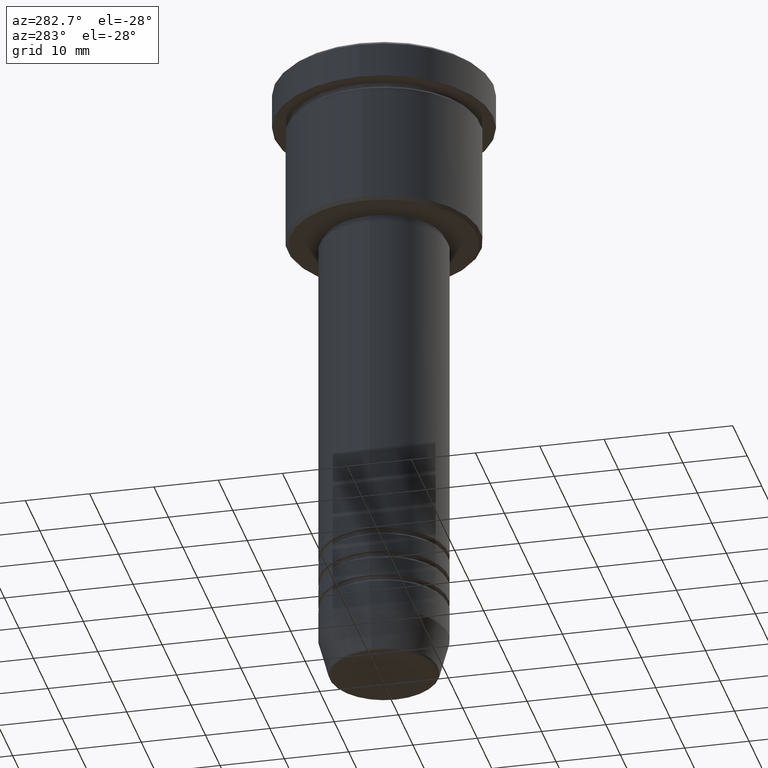
[diagram: clean part render]
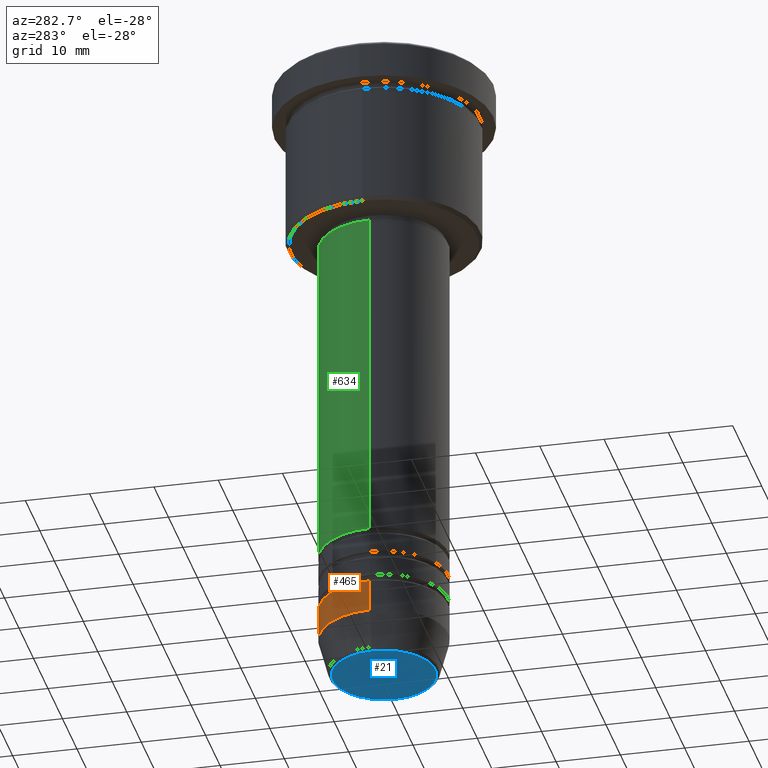
[diagram: same view with three faces highlighted in distinct colors, each labeled with its STEP entity id]
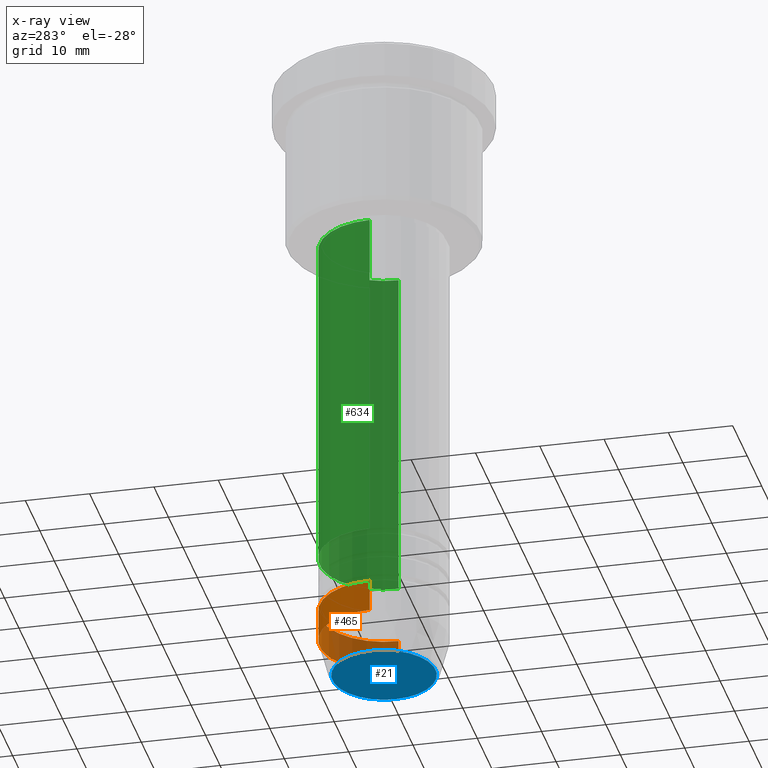
[diagram: x-ray of the same camera — body ghosted, the three highlighted faces saturated]
A machine part, auxiliary view with three faces highlighted in distinct colors.
The next image is the same camera in x-ray (body ghosted, the three faces saturated) — at least one of them is partly hidden behind the body in this view.
Their STEP definitions:

[orange] entity #465 — the highlighted cylindrical surface (partial cylindrical patch) has radius 10 mm, axis along (-0, -0, 1).
#8 = ORIENTED_EDGE ( 'NONE', *, *, #136, .F. ) ;
#19 = VECTOR ( 'NONE', #436, 1000.000000000000000 ) ;
#54 = EDGE_CURVE ( 'NONE', #282, #299, #1070, .T. ) ;
#110 = CARTESIAN_POINT ( 'NONE',  ( 0.000000000000000000, 0.000000000000000000, -94.00000000000000000 ) ) ;
#136 = EDGE_CURVE ( 'NONE', #299, #325, #185, .T. ) ;
#149 = EDGE_CURVE ( 'NONE', #282, #320, #165, .T. ) ;
#162 = CARTESIAN_POINT ( 'NONE',  ( 0.000000000000000000, 0.000000000000000000, 0.000000000000000000 ) ) ;
#165 = CIRCLE ( 'NONE', #1124, 10.00000000000000178 ) ;
#185 = CIRCLE ( 'NONE', #678, 10.00000000000000000 ) ;
#203 = DIRECTION ( 'NONE',  ( -0.000000000000000000, -0.000000000000000000, 1.000000000000000000 ) ) ;
#213 = ORIENTED_EDGE ( 'NONE', *, *, #149, .T. ) ;
#275 = CARTESIAN_POINT ( 'NONE',  ( 0.000000000000000000, 0.000000000000000000, -89.00000000000000000 ) ) ;
#282 = VERTEX_POINT ( 'NONE', #963 ) ;
#285 = EDGE_LOOP ( 'NONE', ( #213, #947, #8, #844 ) ) ;
#299 = VERTEX_POINT ( 'NONE', #393 ) ;
#320 = VERTEX_POINT ( 'NONE', #1055 ) ;
#325 = VERTEX_POINT ( 'NONE', #1050 ) ;
#332 = CARTESIAN_POINT ( 'NONE',  ( 10.00000000000000178, 0.000000000000000000, 0.000000000000000000 ) ) ;
#377 = DIRECTION ( 'NONE',  ( 1.000000000000000000, 0.000000000000000000, 0.000000000000000000 ) ) ;
#393 = CARTESIAN_POINT ( 'NONE',  ( 10.00000000000000000, 0.000000000000000000, -89.00000000000000000 ) ) ;
#412 = EDGE_CURVE ( 'NONE', #320, #325, #1173, .T. ) ;
#436 = DIRECTION ( 'NONE',  ( -0.000000000000000000, -0.000000000000000000, 1.000000000000000000 ) ) ;
#465 = ADVANCED_FACE ( 'NONE', ( #1064 ), #969, .T. ) ;
#513 = DIRECTION ( 'NONE',  ( -0.000000000000000000, -0.000000000000000000, 1.000000000000000000 ) ) ;
#537 = CARTESIAN_POINT ( 'NONE',  ( -10.00000000000000178, 1.224646799147353454E-15, 0.000000000000000000 ) ) ;
#560 = AXIS2_PLACEMENT_3D ( 'NONE', #162, #513, #883 ) ;
#568 = DIRECTION ( 'NONE',  ( -0.000000000000000000, -0.000000000000000000, 1.000000000000000000 ) ) ;
#604 = DIRECTION ( 'NONE',  ( -0.000000000000000000, -0.000000000000000000, 1.000000000000000000 ) ) ;
#678 = AXIS2_PLACEMENT_3D ( 'NONE', #275, #203, #377 ) ;
#744 = DIRECTION ( 'NONE',  ( 1.000000000000000000, 0.000000000000000000, 0.000000000000000000 ) ) ;
#844 = ORIENTED_EDGE ( 'NONE', *, *, #54, .F. ) ;
#883 = DIRECTION ( 'NONE',  ( 1.000000000000000000, 0.000000000000000000, 0.000000000000000000 ) ) ;
#947 = ORIENTED_EDGE ( 'NONE', *, *, #412, .T. ) ;
#963 = CARTESIAN_POINT ( 'NONE',  ( 10.00000000000000178, 0.000000000000000000, -94.00000000000000000 ) ) ;
#969 = CYLINDRICAL_SURFACE ( 'NONE', #560, 10.00000000000000178 ) ;
#1050 = CARTESIAN_POINT ( 'NONE',  ( -10.00000000000000000, 1.224646799147353256E-15, -89.00000000000000000 ) ) ;
#1055 = CARTESIAN_POINT ( 'NONE',  ( -10.00000000000000178, 1.224646799147353454E-15, -94.00000000000000000 ) ) ;
#1059 = VECTOR ( 'NONE', #604, 1000.000000000000000 ) ;
#1064 = FACE_OUTER_BOUND ( 'NONE', #285, .T. ) ;
#1070 = LINE ( 'NONE', #332, #19 ) ;
#1124 = AXIS2_PLACEMENT_3D ( 'NONE', #110, #568, #744 ) ;
#1173 = LINE ( 'NONE', #537, #1059 ) ;

[blue] entity #21 — the highlighted planar face has unit normal (0, -0, 1).
#2 = CARTESIAN_POINT ( 'NONE',  ( -8.008641351423779753, 1.010348648938493172E-15, -100.0000000000000000 ) ) ;
#11 = AXIS2_PLACEMENT_3D ( 'NONE', #902, #431, #352 ) ;
#21 = ADVANCED_FACE ( 'NONE', ( #78 ), #974, .F. ) ;
#63 = DIRECTION ( 'NONE',  ( 1.000000000000000000, 0.000000000000000000, 0.000000000000000000 ) ) ;
#78 = FACE_OUTER_BOUND ( 'NONE', #637, .T. ) ;
#133 = VERTEX_POINT ( 'NONE', #835 ) ;
#159 = CARTESIAN_POINT ( 'NONE',  ( 0.000000000000000000, 0.000000000000000000, -100.0000000000000000 ) ) ;
#228 = ORIENTED_EDGE ( 'NONE', *, *, #898, .T. ) ;
#352 = DIRECTION ( 'NONE',  ( 1.000000000000000000, 0.000000000000000000, 0.000000000000000000 ) ) ;
#382 = ORIENTED_EDGE ( 'NONE', *, *, #427, .T. ) ;
#427 = EDGE_CURVE ( 'NONE', #133, #1071, #829, .T. ) ;
#431 = DIRECTION ( 'NONE',  ( 0.000000000000000000, 0.000000000000000000, -1.000000000000000000 ) ) ;
#534 = DIRECTION ( 'NONE',  ( 1.000000000000000000, 0.000000000000000000, 0.000000000000000000 ) ) ;
#562 = CIRCLE ( 'NONE', #830, 8.008641351423779753 ) ;
#637 = EDGE_LOOP ( 'NONE', ( #382, #228 ) ) ;
#714 = DIRECTION ( 'NONE',  ( 0.000000000000000000, 0.000000000000000000, -1.000000000000000000 ) ) ;
#717 = CARTESIAN_POINT ( 'NONE',  ( 0.000000000000000000, 0.000000000000000000, -100.0000000000000000 ) ) ;
#829 = CIRCLE ( 'NONE', #11, 8.008641351423779753 ) ;
#830 = AXIS2_PLACEMENT_3D ( 'NONE', #159, #714, #63 ) ;
#835 = CARTESIAN_POINT ( 'NONE',  ( 8.008641351423779753, 0.000000000000000000, -100.0000000000000000 ) ) ;
#898 = EDGE_CURVE ( 'NONE', #1071, #133, #562, .T. ) ;
#902 = CARTESIAN_POINT ( 'NONE',  ( 0.000000000000000000, 0.000000000000000000, -100.0000000000000000 ) ) ;
#974 = PLANE ( 'NONE',  #1027 ) ;
#990 = DIRECTION ( 'NONE',  ( 0.000000000000000000, -0.000000000000000000, 1.000000000000000000 ) ) ;
#1027 = AXIS2_PLACEMENT_3D ( 'NONE', #717, #990, #534 ) ;
#1071 = VERTEX_POINT ( 'NONE', #2 ) ;

[green] entity #634 — the highlighted cylindrical surface (partial cylindrical patch) has radius 10 mm, axis along (-0, -0, 1).
#57 = ORIENTED_EDGE ( 'NONE', *, *, #191, .F. ) ;
#86 = DIRECTION ( 'NONE',  ( -0.000000000000000000, -0.000000000000000000, 1.000000000000000000 ) ) ;
#88 = EDGE_CURVE ( 'NONE', #1057, #89, #885, .T. ) ;
#89 = VERTEX_POINT ( 'NONE', #445 ) ;
#92 = DIRECTION ( 'NONE',  ( -0.000000000000000000, -0.000000000000000000, 1.000000000000000000 ) ) ;
#173 = DIRECTION ( 'NONE',  ( 1.000000000000000000, 0.000000000000000000, 0.000000000000000000 ) ) ;
#191 = EDGE_CURVE ( 'NONE', #858, #653, #365, .T. ) ;
#365 = LINE ( 'NONE', #728, #967 ) ;
#386 = AXIS2_PLACEMENT_3D ( 'NONE', #455, #92, #450 ) ;
#426 = CARTESIAN_POINT ( 'NONE',  ( -10.00000000000000000, 1.224646799147353256E-15, 0.000000000000000000 ) ) ;
#445 = CARTESIAN_POINT ( 'NONE',  ( -9.999999999999998224, 1.224646799147353256E-15, -26.99999999999999645 ) ) ;
#447 = ORIENTED_EDGE ( 'NONE', *, *, #1146, .F. ) ;
#450 = DIRECTION ( 'NONE',  ( 1.000000000000000000, 0.000000000000000000, 0.000000000000000000 ) ) ;
#455 = CARTESIAN_POINT ( 'NONE',  ( 0.000000000000000000, 0.000000000000000000, 0.000000000000000000 ) ) ;
#545 = CYLINDRICAL_SURFACE ( 'NONE', #386, 10.00000000000000000 ) ;
#549 = CARTESIAN_POINT ( 'NONE',  ( 0.000000000000000000, 0.000000000000000000, -79.99999999999998579 ) ) ;
#611 = ORIENTED_EDGE ( 'NONE', *, *, #88, .T. ) ;
#634 = ADVANCED_FACE ( 'NONE', ( #642 ), #545, .T. ) ;
#640 = CARTESIAN_POINT ( 'NONE',  ( 0.000000000000000000, 0.000000000000000000, -26.99999999999999645 ) ) ;
#642 = FACE_OUTER_BOUND ( 'NONE', #688, .T. ) ;
#650 = ORIENTED_EDGE ( 'NONE', *, *, #972, .T. ) ;
#653 = VERTEX_POINT ( 'NONE', #768 ) ;
#664 = CARTESIAN_POINT ( 'NONE',  ( -10.00000000000000178, 1.224646799147353454E-15, -79.99999999999998579 ) ) ;
#688 = EDGE_LOOP ( 'NONE', ( #650, #611, #447, #57 ) ) ;
#728 = CARTESIAN_POINT ( 'NONE',  ( 10.00000000000000000, 0.000000000000000000, 0.000000000000000000 ) ) ;
#768 = CARTESIAN_POINT ( 'NONE',  ( 9.999999999999998224, 0.000000000000000000, -26.99999999999999645 ) ) ;
#793 = CIRCLE ( 'NONE', #1176, 10.00000000000000178 ) ;
#858 = VERTEX_POINT ( 'NONE', #984 ) ;
#870 = DIRECTION ( 'NONE',  ( -0.000000000000000000, -0.000000000000000000, 1.000000000000000000 ) ) ;
#885 = LINE ( 'NONE', #426, #1178 ) ;
#948 = DIRECTION ( 'NONE',  ( 1.000000000000000000, 0.000000000000000000, 0.000000000000000000 ) ) ;
#967 = VECTOR ( 'NONE', #1102, 1000.000000000000000 ) ;
#972 = EDGE_CURVE ( 'NONE', #858, #1057, #793, .T. ) ;
#984 = CARTESIAN_POINT ( 'NONE',  ( 10.00000000000000178, 0.000000000000000000, -79.99999999999998579 ) ) ;
#1008 = DIRECTION ( 'NONE',  ( -0.000000000000000000, -0.000000000000000000, 1.000000000000000000 ) ) ;
#1023 = AXIS2_PLACEMENT_3D ( 'NONE', #640, #870, #948 ) ;
#1057 = VERTEX_POINT ( 'NONE', #664 ) ;
#1102 = DIRECTION ( 'NONE',  ( -0.000000000000000000, -0.000000000000000000, 1.000000000000000000 ) ) ;
#1146 = EDGE_CURVE ( 'NONE', #653, #89, #1158, .T. ) ;
#1158 = CIRCLE ( 'NONE', #1023, 9.999999999999998224 ) ;
#1176 = AXIS2_PLACEMENT_3D ( 'NONE', #549, #1008, #173 ) ;
#1178 = VECTOR ( 'NONE', #86, 1000.000000000000000 ) ;